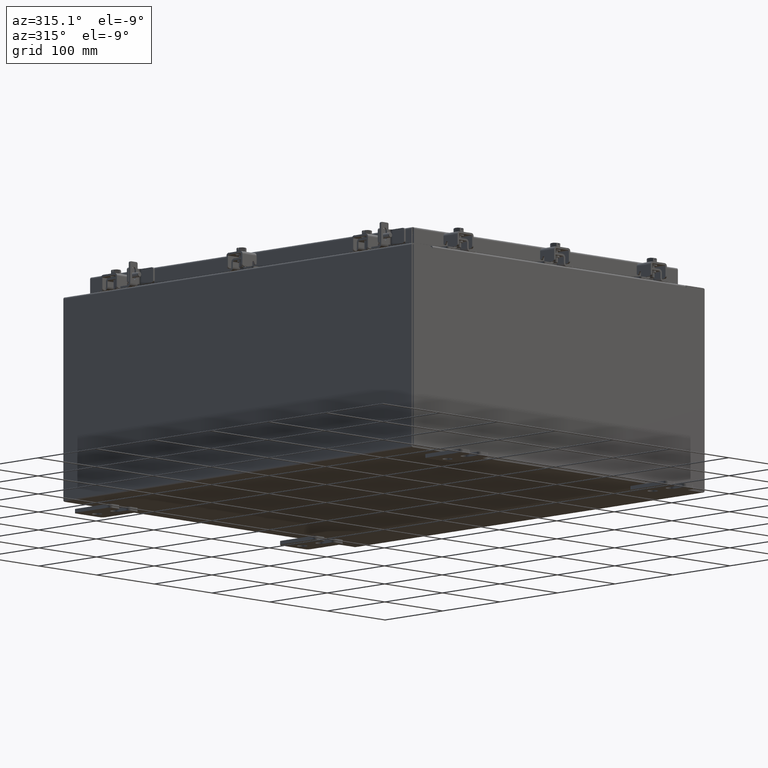
[diagram: clean part render]
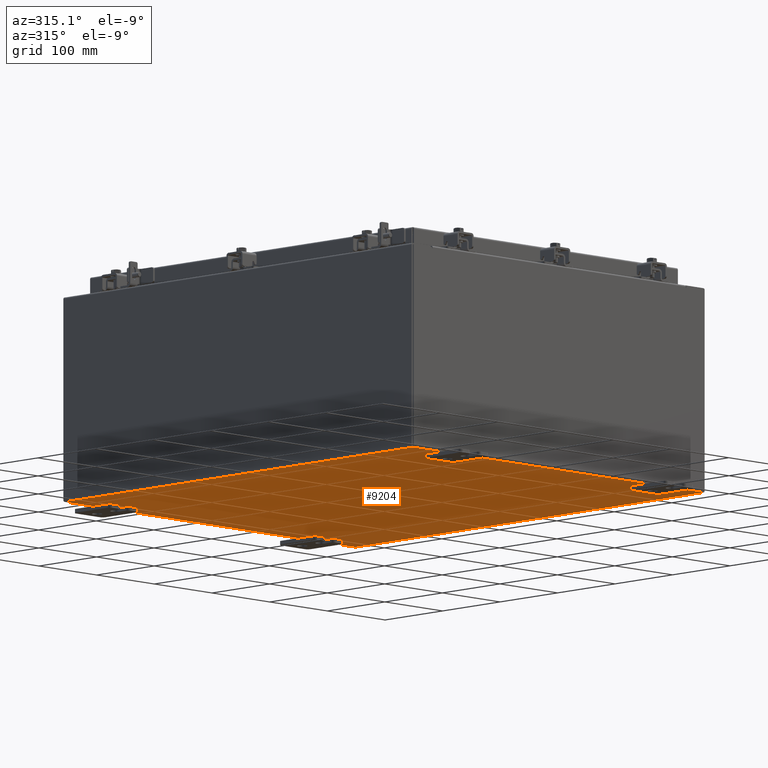
[diagram: same view with one face highlighted and labeled with its STEP entity id]
A machine part, auxiliary view. The second image highlights one B-rep face of the part: STEP entity #9204.
In plain terms, the highlighted planar face has unit normal (0, 0, -1).
Its self-contained STEP definition (entity closure, byte-faithful):
#1153 = VERTEX_POINT ( 'NONE', #5389 ) ;
#1238 = EDGE_LOOP ( 'NONE', ( #5637, #4214, #14883, #17715 ) ) ;
#3484 = CARTESIAN_POINT ( 'NONE',  ( 9.912300000000000100, -11.92530000000000000, -0.07470000000000000300 ) ) ;
#3829 = CARTESIAN_POINT ( 'NONE',  ( -9.912300000000000100, -11.92529999999999800, -0.07469999999999994700 ) ) ;
#3873 = LINE ( 'NONE', #19948, #21831 ) ;
#4140 = LINE ( 'NONE', #13901, #18332 ) ;
#4214 = ORIENTED_EDGE ( 'NONE', *, *, #8826, .T. ) ;
#5389 = CARTESIAN_POINT ( 'NONE',  ( 9.912300000000000100, 11.92529999999999800, -0.07469999999999994700 ) ) ;
#5637 = ORIENTED_EDGE ( 'NONE', *, *, #18693, .F. ) ;
#8714 = DIRECTION ( 'NONE',  ( 1.000000000000000000, 0.0000000000000000000, 0.0000000000000000000 ) ) ;
#8826 = EDGE_CURVE ( 'NONE', #13420, #13944, #8926, .T. ) ;
#8926 = LINE ( 'NONE', #20845, #22235 ) ;
#9061 = DIRECTION ( 'NONE',  ( 0.0000000000000000000, 0.0000000000000000000, -1.000000000000000000 ) ) ;
#9204 = ADVANCED_FACE ( 'NONE', ( #16303 ), #19479, .T. ) ;
#11358 = DIRECTION ( 'NONE',  ( -0.0000000000000000000, 1.000000000000000000, -0.0000000000000000000 ) ) ;
#12493 = CARTESIAN_POINT ( 'NONE',  ( 0.0000000000000000000, 0.0000000000000000000, -0.07470000000000000300 ) ) ;
#13420 = VERTEX_POINT ( 'NONE', #3829 ) ;
#13901 = CARTESIAN_POINT ( 'NONE',  ( -10.00000000000000000, -11.92530000000000000, -0.07470000000000000300 ) ) ;
#13944 = VERTEX_POINT ( 'NONE', #16333 ) ;
#14582 = EDGE_CURVE ( 'NONE', #1153, #20727, #3873, .T. ) ;
#14824 = DIRECTION ( 'NONE',  ( -0.0000000000000000000, -1.000000000000000000, -0.0000000000000000000 ) ) ;
#14883 = ORIENTED_EDGE ( 'NONE', *, *, #19481, .F. ) ;
#16150 = CARTESIAN_POINT ( 'NONE',  ( -10.00000000000000000, 11.92530000000000000, -0.07470000000000000300 ) ) ;
#16303 = FACE_OUTER_BOUND ( 'NONE', #1238, .T. ) ;
#16333 = CARTESIAN_POINT ( 'NONE',  ( -9.912300000000000100, 11.92530000000000000, -0.07470000000000000300 ) ) ;
#17549 = AXIS2_PLACEMENT_3D ( 'NONE', #12493, #9061, #21210 ) ;
#17715 = ORIENTED_EDGE ( 'NONE', *, *, #14582, .T. ) ;
#17779 = DIRECTION ( 'NONE',  ( -1.000000000000000000, -0.0000000000000000000, -0.0000000000000000000 ) ) ;
#18332 = VECTOR ( 'NONE', #8714, 39.37007874015748100 ) ;
#18693 = EDGE_CURVE ( 'NONE', #13420, #20727, #4140, .T. ) ;
#19479 = PLANE ( 'NONE',  #17549 ) ;
#19481 = EDGE_CURVE ( 'NONE', #1153, #13944, #20412, .T. ) ;
#19881 = VECTOR ( 'NONE', #17779, 39.37007874015748100 ) ;
#19948 = CARTESIAN_POINT ( 'NONE',  ( 9.912300000000000100, 11.92530000000000000, -0.07469999999999994700 ) ) ;
#20412 = LINE ( 'NONE', #16150, #19881 ) ;
#20727 = VERTEX_POINT ( 'NONE', #3484 ) ;
#20845 = CARTESIAN_POINT ( 'NONE',  ( -9.912300000000000100, -11.92530000000000000, -0.07469999999999994700 ) ) ;
#21210 = DIRECTION ( 'NONE',  ( -1.000000000000000000, 0.0000000000000000000, -0.0000000000000000000 ) ) ;
#21831 = VECTOR ( 'NONE', #14824, 39.37007874015748100 ) ;
#22235 = VECTOR ( 'NONE', #11358, 39.37007874015748100 ) ;